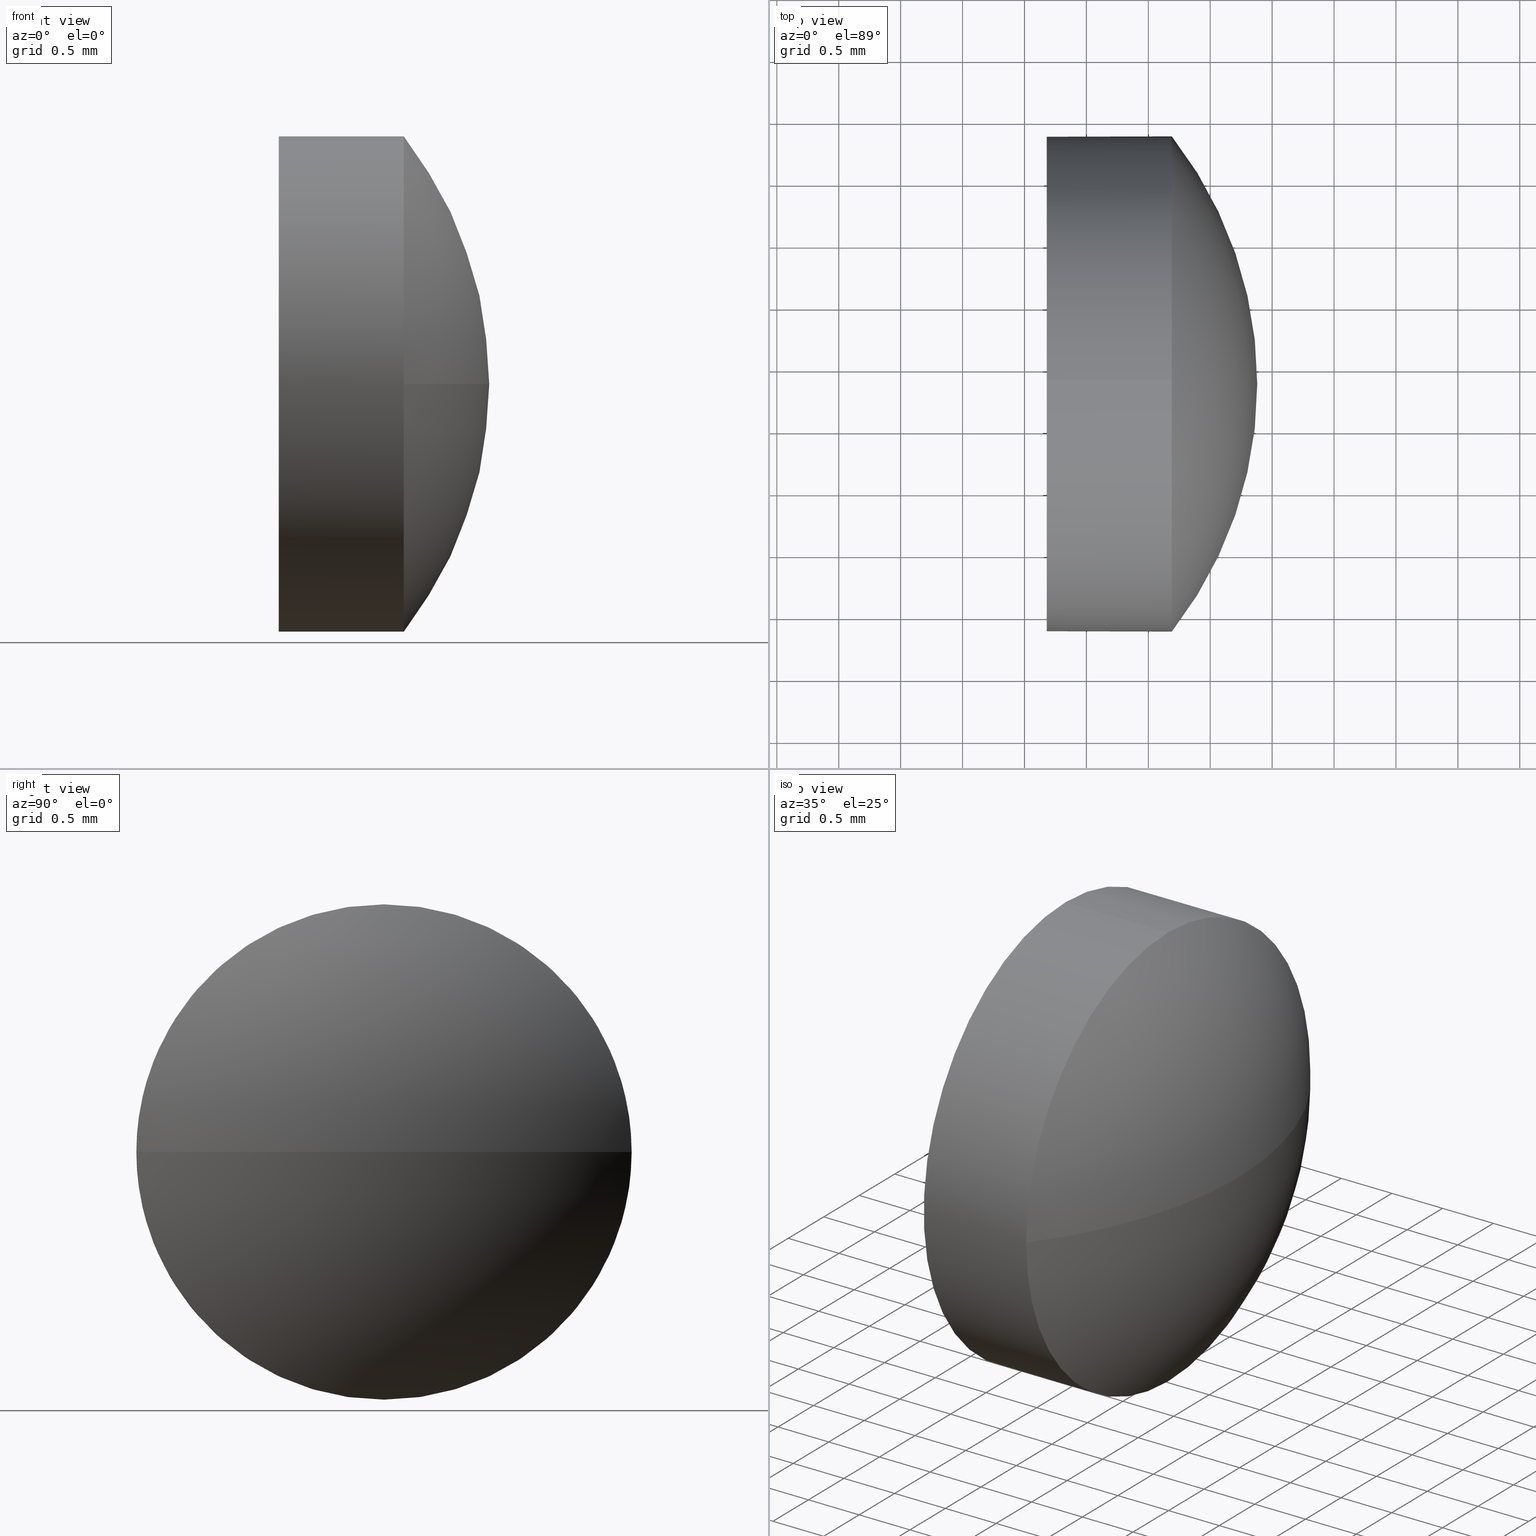
[diagram: canonical four-view strip — front | top / right | iso, engineering-drawing reading convention]
A machine part, canonical four-view strip (front | top / right | iso — engineering-drawing reading convention). The complete STEP part file that produces these views, byte-faithful:
ISO-10303-21;
HEADER;
FILE_DESCRIPTION (( 'STEP AP214' ),
    '1' );
FILE_NAME ('100175.STEP',
    '2019-05-21T01:10:37',
    ( '' ),
    ( '' ),
    'SwSTEP 2.0',
    'SolidWorks 2016',
    '' );
FILE_SCHEMA (( 'AUTOMOTIVE_DESIGN' ));
ENDSEC;

DATA;
#1 = CIRCLE ( 'NONE', #6, 3.243550724637778200 ) ;
#2 = CIRCLE ( 'NONE', #41, 2.000000000000001800 ) ;
#3 = CYLINDRICAL_SURFACE ( 'NONE', #112, 2.000000000000001800 ) ;
#4 = DIRECTION ( 'NONE',  ( -1.000000000000000000, -0.0000000000000000000, -0.0000000000000000000 ) ) ;
#5 = CARTESIAN_POINT ( 'NONE',  ( 506.1898674013084500, -76.13347349802080500, 0.0000000000000000000 ) ) ;
#6 = AXIS2_PLACEMENT_3D ( 'NONE', #75, #140, #179 ) ;
#7 = DIRECTION ( 'NONE',  ( 0.0000000000000000000, 0.0000000000000000000, 1.000000000000000000 ) ) ;
#8 = FACE_OUTER_BOUND ( 'NONE', #152, .T. ) ;
#9 = DIRECTION ( 'NONE',  ( 0.0000000000000000000, 1.000000000000000000, 0.0000000000000000000 ) ) ;
#10 = AXIS2_PLACEMENT_3D ( 'NONE', #138, #181, #153 ) ;
#11 = VERTEX_POINT ( 'NONE', #55 ) ;
#12 = SURFACE_STYLE_FILL_AREA ( #155 ) ;
#13 = VERTEX_POINT ( 'NONE', #70 ) ;
#14 = LINE ( 'NONE', #15, #163 ) ;
#15 = CARTESIAN_POINT ( 'NONE',  ( 504.7499832645277100, -76.13347349802080500, -2.000000000000001800 ) ) ;
#16 = SHAPE_DEFINITION_REPRESENTATION ( #158, #107 ) ;
#17 = ORIENTED_EDGE ( 'NONE', *, *, #130, .F. ) ;
#18 = EDGE_CURVE ( 'NONE', #13, #98, #126, .T. ) ;
#19 = PLANE ( 'NONE',  #20 ) ;
#20 = AXIS2_PLACEMENT_3D ( 'NONE', #121, #22, #125 ) ;
#21 = SURFACE_SIDE_STYLE ('',( #104 ) ) ;
#22 = DIRECTION ( 'NONE',  ( 1.000000000000000000, 0.0000000000000000000, 0.0000000000000000000 ) ) ;
#23 = DIRECTION ( 'NONE',  ( 1.000000000000000000, 0.0000000000000000000, 0.0000000000000000000 ) ) ;
#24 = EDGE_LOOP ( 'NONE', ( #50, #134, #117, #67 ) ) ;
#25 = AXIS2_PLACEMENT_3D ( 'NONE', #5, #30, #105 ) ;
#26 = AXIS2_PLACEMENT_3D ( 'NONE', #151, #127, #60 ) ;
#27 = CARTESIAN_POINT ( 'NONE',  ( 506.1898674013084500, -76.13347349802080500, 2.000000000000001800 ) ) ;
#28 =( NAMED_UNIT ( * ) PLANE_ANGLE_UNIT ( ) SI_UNIT ( $, .RADIAN. ) );
#29 = CARTESIAN_POINT ( 'NONE',  ( 506.1898674013084500, -76.13347349802080500, 0.0000000000000000000 ) ) ;
#30 = DIRECTION ( 'NONE',  ( -1.000000000000000000, -0.0000000000000000000, -0.0000000000000000000 ) ) ;
#31 = FACE_OUTER_BOUND ( 'NONE', #128, .T. ) ;
#32 = DIRECTION ( 'NONE',  ( -0.0000000000000000000, 0.0000000000000000000, 1.000000000000000000 ) ) ;
#33 = CARTESIAN_POINT ( 'NONE',  ( 503.6363166766706200, -76.13347349802080500, 0.0000000000000000000 ) ) ;
#34 = AXIS2_PLACEMENT_3D ( 'NONE', #33, #78, #9 ) ;
#35 = CYLINDRICAL_SURFACE ( 'NONE', #109, 2.000000000000001800 ) ;
#36 = ADVANCED_FACE ( 'NONE', ( #52 ), #35, .T. ) ;
#37 = SPHERICAL_SURFACE ( 'NONE', #133, 3.243550724637780800 ) ;
#38 = PRODUCT_DEFINITION_FORMATION_WITH_SPECIFIED_SOURCE ( '�κ�', '', #154, .NOT_KNOWN. ) ;
#39 = ORIENTED_EDGE ( 'NONE', *, *, #100, .F. ) ;
#40 = UNCERTAINTY_MEASURE_WITH_UNIT (LENGTH_MEASURE( 1.000000000000000100E-005 ), #148, 'distance_accuracy_value', 'NONE');
#41 = AXIS2_PLACEMENT_3D ( 'NONE', #29, #103, #58 ) ;
#42 = CIRCLE ( 'NONE', #26, 2.000000000000001800 ) ;
#43 = ORIENTED_EDGE ( 'NONE', *, *, #180, .T. ) ;
#44 = CARTESIAN_POINT ( 'NONE',  ( 503.6363166766706200, -76.13347349802080500, 0.0000000000000000000 ) ) ;
#45 = VERTEX_POINT ( 'NONE', #120 ) ;
#46 = CARTESIAN_POINT ( 'NONE',  ( 505.1798674013084000, -76.13347349802080500, -2.000000000000001800 ) ) ;
#47 = COLOUR_RGB ( '',1.000000000000000000, 1.000000000000000000, 1.000000000000000000 ) ;
#48 = DIRECTION ( 'NONE',  ( -1.000000000000000000, -0.0000000000000000000, -0.0000000000000000000 ) ) ;
#49 = EDGE_CURVE ( 'NONE', #88, #160, #14, .T. ) ;
#50 = ORIENTED_EDGE ( 'NONE', *, *, #129, .F. ) ;
#51 = CARTESIAN_POINT ( 'NONE',  ( 504.7499832645277100, -76.13347349802080500, 0.0000000000000000000 ) ) ;
#52 = FACE_OUTER_BOUND ( 'NONE', #95, .T. ) ;
#53 =( GEOMETRIC_REPRESENTATION_CONTEXT ( 3 ) GLOBAL_UNCERTAINTY_ASSIGNED_CONTEXT ( ( #122 ) ) GLOBAL_UNIT_ASSIGNED_CONTEXT ( ( #81, #63, #111 ) ) REPRESENTATION_CONTEXT ( 'NONE', 'WORKASPACE' ) );
#54 = ORIENTED_EDGE ( 'NONE', *, *, #49, .T. ) ;
#55 = CARTESIAN_POINT ( 'NONE',  ( 506.1898674013084500, -74.13347349802079100, 0.0000000000000000000 ) ) ;
#56 =( NAMED_UNIT ( * ) PLANE_ANGLE_UNIT ( ) SI_UNIT ( $, .RADIAN. ) );
#57 =( GEOMETRIC_REPRESENTATION_CONTEXT ( 3 ) GLOBAL_UNCERTAINTY_ASSIGNED_CONTEXT ( ( #149 ) ) GLOBAL_UNIT_ASSIGNED_CONTEXT ( ( #167, #28, #168 ) ) REPRESENTATION_CONTEXT ( 'NONE', 'WORKASPACE' ) );
#58 = DIRECTION ( 'NONE',  ( 0.0000000000000000000, 0.0000000000000000000, 1.000000000000000000 ) ) ;
#59 = SURFACE_STYLE_USAGE ( .BOTH. , #21 ) ;
#60 = DIRECTION ( 'NONE',  ( 0.0000000000000000000, 0.0000000000000000000, 1.000000000000000000 ) ) ;
#61 = SPHERICAL_SURFACE ( 'NONE', #34, 3.243550724637780800 ) ;
#62 = SURFACE_SIDE_STYLE ('',( #12 ) ) ;
#63 =( NAMED_UNIT ( * ) PLANE_ANGLE_UNIT ( ) SI_UNIT ( $, .RADIAN. ) );
#64 = ADVANCED_FACE ( 'NONE', ( #8 ), #37, .T. ) ;
#65 = AXIS2_PLACEMENT_3D ( 'NONE', #162, #147, #174 ) ;
#66 = CIRCLE ( 'NONE', #114, 3.243550724637778200 ) ;
#67 = ORIENTED_EDGE ( 'NONE', *, *, #18, .F. ) ;
#68 = PRODUCT_RELATED_PRODUCT_CATEGORY ( 'part', '', ( #154 ) ) ;
#69 = CIRCLE ( 'NONE', #25, 2.000000000000001800 ) ;
#70 = CARTESIAN_POINT ( 'NONE',  ( 506.1898674013084500, -78.13347349802080500, -2.449293598294705900E-016 ) ) ;
#71 = DIRECTION ( 'NONE',  ( -0.0000000000000000000, 0.0000000000000000000, -1.000000000000000000 ) ) ;
#72 =( NAMED_UNIT ( * ) SI_UNIT ( $, .STERADIAN. ) SOLID_ANGLE_UNIT ( ) );
#73 = ORIENTED_EDGE ( 'NONE', *, *, #18, .T. ) ;
#74 = APPLICATION_PROTOCOL_DEFINITION ( 'draft international standard', 'automotive_design', 1998, #166 ) ;
#75 = CARTESIAN_POINT ( 'NONE',  ( 503.6363166766706200, -76.13347349802080500, 0.0000000000000000000 ) ) ;
#76 = CARTESIAN_POINT ( 'NONE',  ( 505.1798674013084000, -76.13347349802080500, 0.0000000000000000000 ) ) ;
#77 = AXIS2_PLACEMENT_3D ( 'NONE', #90, #92, #93 ) ;
#78 = DIRECTION ( 'NONE',  ( -0.0000000000000000000, 0.0000000000000000000, -1.000000000000000000 ) ) ;
#79 = ORIENTED_EDGE ( 'NONE', *, *, #182, .T. ) ;
#80 = APPLICATION_PROTOCOL_DEFINITION ( 'draft international standard', 'automotive_design', 1998, #141 ) ;
#81 =( LENGTH_UNIT ( ) NAMED_UNIT ( * ) SI_UNIT ( .MILLI., .METRE. ) );
#82 = ORIENTED_EDGE ( 'NONE', *, *, #130, .T. ) ;
#83 = MECHANICAL_DESIGN_GEOMETRIC_PRESENTATION_REPRESENTATION (  '', ( #185 ), #53 ) ;
#84 = PRODUCT_DEFINITION_CONTEXT ( 'detailed design', #141, 'design' ) ;
#85 = ORIENTED_EDGE ( 'NONE', *, *, #182, .F. ) ;
#86 =( GEOMETRIC_REPRESENTATION_CONTEXT ( 3 ) GLOBAL_UNCERTAINTY_ASSIGNED_CONTEXT ( ( #40 ) ) GLOBAL_UNIT_ASSIGNED_CONTEXT ( ( #148, #56, #72 ) ) REPRESENTATION_CONTEXT ( 'NONE', 'WORKASPACE' ) );
#87 = CARTESIAN_POINT ( 'NONE',  ( 504.7499832645277100, -76.13347349802080500, 0.0000000000000000000 ) ) ;
#88 = VERTEX_POINT ( 'NONE', #119 ) ;
#89 = STYLED_ITEM ( 'NONE', ( #144 ), #165 ) ;
#90 = CARTESIAN_POINT ( 'NONE',  ( 505.1798674013084000, -76.13347349802080500, 0.0000000000000000000 ) ) ;
#91 = VERTEX_POINT ( 'NONE', #176 ) ;
#92 = DIRECTION ( 'NONE',  ( -1.000000000000000000, -0.0000000000000000000, -0.0000000000000000000 ) ) ;
#93 = DIRECTION ( 'NONE',  ( 0.0000000000000000000, 0.0000000000000000000, 1.000000000000000000 ) ) ;
#94 = FILL_AREA_STYLE_COLOUR ( '', #183 ) ;
#95 = EDGE_LOOP ( 'NONE', ( #159, #54, #39, #17, #137 ) ) ;
#96 = DIRECTION ( 'NONE',  ( -1.000000000000000000, -0.0000000000000000000, -0.0000000000000000000 ) ) ;
#97 = DIRECTION ( 'NONE',  ( -1.000000000000000000, -0.0000000000000000000, -0.0000000000000000000 ) ) ;
#98 = VERTEX_POINT ( 'NONE', #27 ) ;
#99 = ORIENTED_EDGE ( 'NONE', *, *, #173, .F. ) ;
#100 = EDGE_CURVE ( 'NONE', #45, #160, #116, .T. ) ;
#101 = DIRECTION ( 'NONE',  ( -1.000000000000000000, -0.0000000000000000000, -0.0000000000000000000 ) ) ;
#102 = FACE_OUTER_BOUND ( 'NONE', #172, .T. ) ;
#103 = DIRECTION ( 'NONE',  ( -1.000000000000000000, -0.0000000000000000000, -0.0000000000000000000 ) ) ;
#104 = SURFACE_STYLE_FILL_AREA ( #150 ) ;
#105 = DIRECTION ( 'NONE',  ( 0.0000000000000000000, 0.0000000000000000000, 1.000000000000000000 ) ) ;
#106 = CARTESIAN_POINT ( 'NONE',  ( 503.6363166766706200, -76.13347349802080500, 0.0000000000000000000 ) ) ;
#107 = ADVANCED_BREP_SHAPE_REPRESENTATION ( '100175', ( #165, #10 ), #86 ) ;
#108 = DIRECTION ( 'NONE',  ( 0.0000000000000000000, 0.0000000000000000000, 1.000000000000000000 ) ) ;
#109 = AXIS2_PLACEMENT_3D ( 'NONE', #87, #101, #161 ) ;
#110 = LINE ( 'NONE', #139, #113 ) ;
#111 =( NAMED_UNIT ( * ) SI_UNIT ( $, .STERADIAN. ) SOLID_ANGLE_UNIT ( ) );
#112 = AXIS2_PLACEMENT_3D ( 'NONE', #51, #48, #7 ) ;
#113 = VECTOR ( 'NONE', #97, 1000.000000000000000 ) ;
#114 = AXIS2_PLACEMENT_3D ( 'NONE', #106, #32, #23 ) ;
#115 = CIRCLE ( 'NONE', #136, 2.000000000000001800 ) ;
#116 = CIRCLE ( 'NONE', #77, 2.000000000000001800 ) ;
#117 = ORIENTED_EDGE ( 'NONE', *, *, #143, .F. ) ;
#118 = FACE_OUTER_BOUND ( 'NONE', #24, .T. ) ;
#119 = CARTESIAN_POINT ( 'NONE',  ( 506.1898674013084500, -76.13347349802080500, -2.000000000000001800 ) ) ;
#120 = CARTESIAN_POINT ( 'NONE',  ( 505.1798674013084000, -76.13347349802080500, 2.000000000000001800 ) ) ;
#121 = CARTESIAN_POINT ( 'NONE',  ( 505.1798674013084000, -76.13347349802080500, 0.0000000000000000000 ) ) ;
#122 = UNCERTAINTY_MEASURE_WITH_UNIT (LENGTH_MEASURE( 1.000000000000000100E-005 ), #81, 'distance_accuracy_value', 'NONE');
#123 = MECHANICAL_DESIGN_GEOMETRIC_PRESENTATION_REPRESENTATION (  '', ( #89 ), #57 ) ;
#124 = PRESENTATION_STYLE_ASSIGNMENT (( #169 ) ) ;
#125 = DIRECTION ( 'NONE',  ( 0.0000000000000000000, 0.0000000000000000000, -1.000000000000000000 ) ) ;
#126 = CIRCLE ( 'NONE', #65, 2.000000000000001800 ) ;
#127 = DIRECTION ( 'NONE',  ( -1.000000000000000000, -0.0000000000000000000, -0.0000000000000000000 ) ) ;
#128 = EDGE_LOOP ( 'NONE', ( #156, #79, #73, #82, #142 ) ) ;
#129 = EDGE_CURVE ( 'NONE', #91, #13, #1, .T. ) ;
#130 = EDGE_CURVE ( 'NONE', #98, #45, #110, .T. ) ;
#131 = ORIENTED_EDGE ( 'NONE', *, *, #100, .T. ) ;
#132 = PRODUCT_DEFINITION ( 'δ֪', '', #38, #84 ) ;
#133 = AXIS2_PLACEMENT_3D ( 'NONE', #44, #71, #135 ) ;
#134 = ORIENTED_EDGE ( 'NONE', *, *, #173, .T. ) ;
#135 = DIRECTION ( 'NONE',  ( 0.0000000000000000000, 1.000000000000000000, 0.0000000000000000000 ) ) ;
#136 = AXIS2_PLACEMENT_3D ( 'NONE', #76, #96, #108 ) ;
#137 = ORIENTED_EDGE ( 'NONE', *, *, #143, .T. ) ;
#138 = CARTESIAN_POINT ( 'NONE',  ( 0.0000000000000000000, 0.0000000000000000000, 0.0000000000000000000 ) ) ;
#139 = CARTESIAN_POINT ( 'NONE',  ( 504.7499832645277100, -76.13347349802080500, 2.000000000000001800 ) ) ;
#140 = DIRECTION ( 'NONE',  ( 0.0000000000000000000, 1.224646799147353200E-016, -1.000000000000000000 ) ) ;
#141 = APPLICATION_CONTEXT ( 'automotive_design' ) ;
#142 = ORIENTED_EDGE ( 'NONE', *, *, #180, .F. ) ;
#143 = EDGE_CURVE ( 'NONE', #98, #11, #69, .T. ) ;
#144 = PRESENTATION_STYLE_ASSIGNMENT (( #59 ) ) ;
#145 = PRESENTATION_LAYER_ASSIGNMENT (  '', '', ( #89 ) ) ;
#146 = CLOSED_SHELL ( 'NONE', ( #36, #64, #186, #184, #171 ) ) ;
#147 = DIRECTION ( 'NONE',  ( -1.000000000000000000, -0.0000000000000000000, -0.0000000000000000000 ) ) ;
#148 =( LENGTH_UNIT ( ) NAMED_UNIT ( * ) SI_UNIT ( .MILLI., .METRE. ) );
#149 = UNCERTAINTY_MEASURE_WITH_UNIT (LENGTH_MEASURE( 1.000000000000000100E-005 ), #167, 'distance_accuracy_value', 'NONE');
#150 = FILL_AREA_STYLE ('',( #94 ) ) ;
#151 = CARTESIAN_POINT ( 'NONE',  ( 506.1898674013084500, -76.13347349802080500, 0.0000000000000000000 ) ) ;
#152 = EDGE_LOOP ( 'NONE', ( #99, #177, #85, #157 ) ) ;
#153 = DIRECTION ( 'NONE',  ( 1.000000000000000000, 0.0000000000000000000, 0.0000000000000000000 ) ) ;
#154 = PRODUCT ( '100175', '100175', '', ( #170 ) ) ;
#155 = FILL_AREA_STYLE ('',( #178 ) ) ;
#156 = ORIENTED_EDGE ( 'NONE', *, *, #49, .F. ) ;
#157 = ORIENTED_EDGE ( 'NONE', *, *, #164, .F. ) ;
#158 = PRODUCT_DEFINITION_SHAPE ( 'NONE', 'NONE',  #132 ) ;
#159 = ORIENTED_EDGE ( 'NONE', *, *, #164, .T. ) ;
#160 = VERTEX_POINT ( 'NONE', #46 ) ;
#161 = DIRECTION ( 'NONE',  ( 0.0000000000000000000, 0.0000000000000000000, 1.000000000000000000 ) ) ;
#162 = CARTESIAN_POINT ( 'NONE',  ( 506.1898674013084500, -76.13347349802080500, 0.0000000000000000000 ) ) ;
#163 = VECTOR ( 'NONE', #4, 1000.000000000000000 ) ;
#164 = EDGE_CURVE ( 'NONE', #11, #88, #2, .T. ) ;
#165 = MANIFOLD_SOLID_BREP ( '��ת2', #146 ) ;
#166 = APPLICATION_CONTEXT ( 'automotive_design' ) ;
#167 =( LENGTH_UNIT ( ) NAMED_UNIT ( * ) SI_UNIT ( .MILLI., .METRE. ) );
#168 =( NAMED_UNIT ( * ) SI_UNIT ( $, .STERADIAN. ) SOLID_ANGLE_UNIT ( ) );
#169 = SURFACE_STYLE_USAGE ( .BOTH. , #62 ) ;
#170 = PRODUCT_CONTEXT ( 'NONE', #166, 'mechanical' ) ;
#171 = ADVANCED_FACE ( 'NONE', ( #102 ), #19, .F. ) ;
#172 = EDGE_LOOP ( 'NONE', ( #131, #43 ) ) ;
#173 = EDGE_CURVE ( 'NONE', #91, #11, #66, .T. ) ;
#174 = DIRECTION ( 'NONE',  ( 0.0000000000000000000, 0.0000000000000000000, 1.000000000000000000 ) ) ;
#175 = PRESENTATION_LAYER_ASSIGNMENT (  '', '', ( #185 ) ) ;
#176 = CARTESIAN_POINT ( 'NONE',  ( 506.8798674013083900, -76.13347349802080500, 0.0000000000000000000 ) ) ;
#177 = ORIENTED_EDGE ( 'NONE', *, *, #129, .T. ) ;
#178 = FILL_AREA_STYLE_COLOUR ( '', #47 ) ;
#179 = DIRECTION ( 'NONE',  ( 0.0000000000000000000, 1.000000000000000000, 1.224646799147354200E-016 ) ) ;
#180 = EDGE_CURVE ( 'NONE', #160, #45, #115, .T. ) ;
#181 = DIRECTION ( 'NONE',  ( 0.0000000000000000000, 0.0000000000000000000, 1.000000000000000000 ) ) ;
#182 = EDGE_CURVE ( 'NONE', #88, #13, #42, .T. ) ;
#183 = COLOUR_RGB ( '',1.000000000000000000, 1.000000000000000000, 1.000000000000000000 ) ;
#184 = ADVANCED_FACE ( 'NONE', ( #31 ), #3, .T. ) ;
#185 = STYLED_ITEM ( 'NONE', ( #124 ), #107 ) ;
#186 = ADVANCED_FACE ( 'NONE', ( #118 ), #61, .T. ) ;
ENDSEC;
END-ISO-10303-21;
